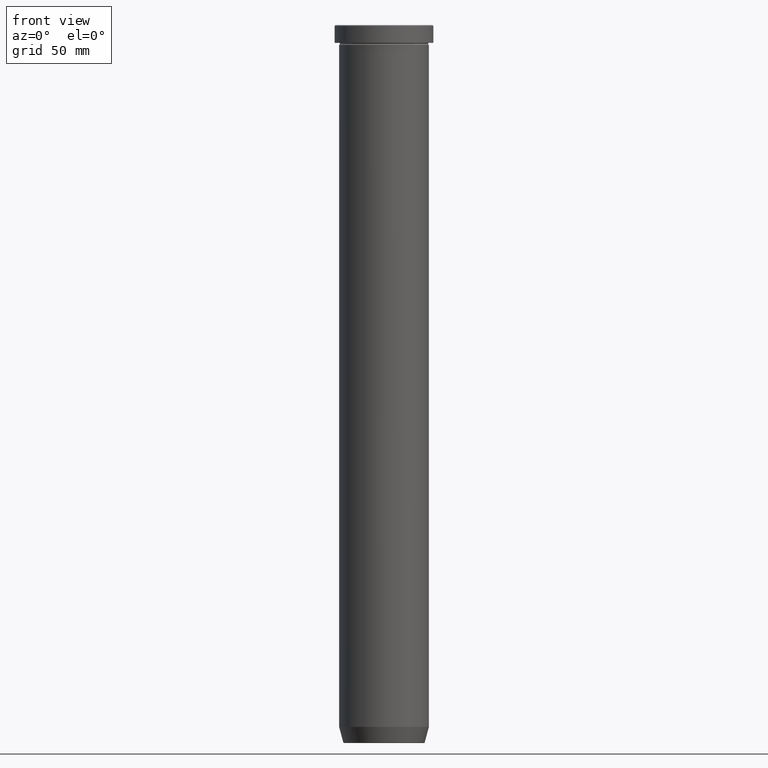
[diagram: clean part render]
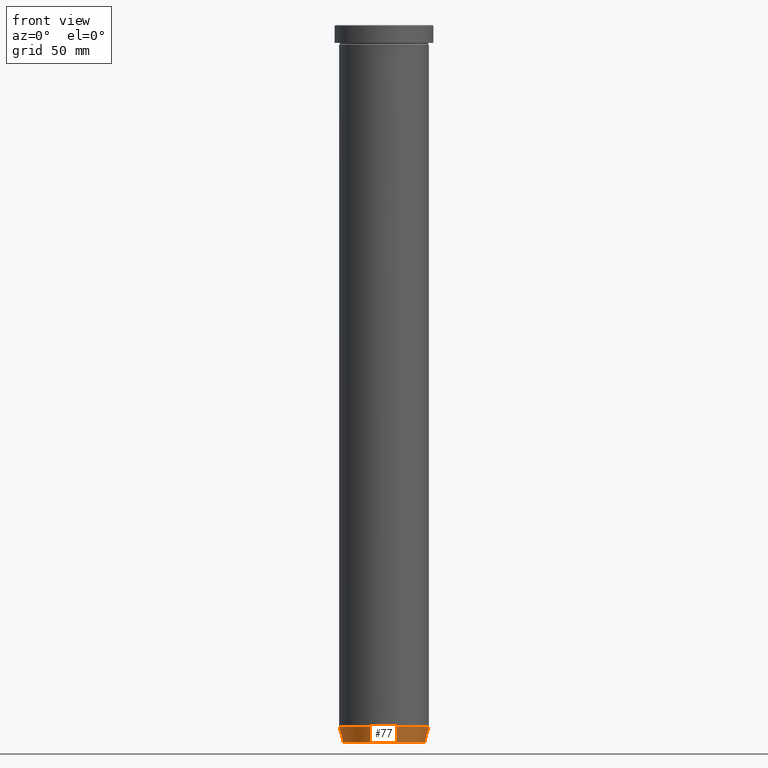
[diagram: same view with one face highlighted and labeled with its STEP entity id]
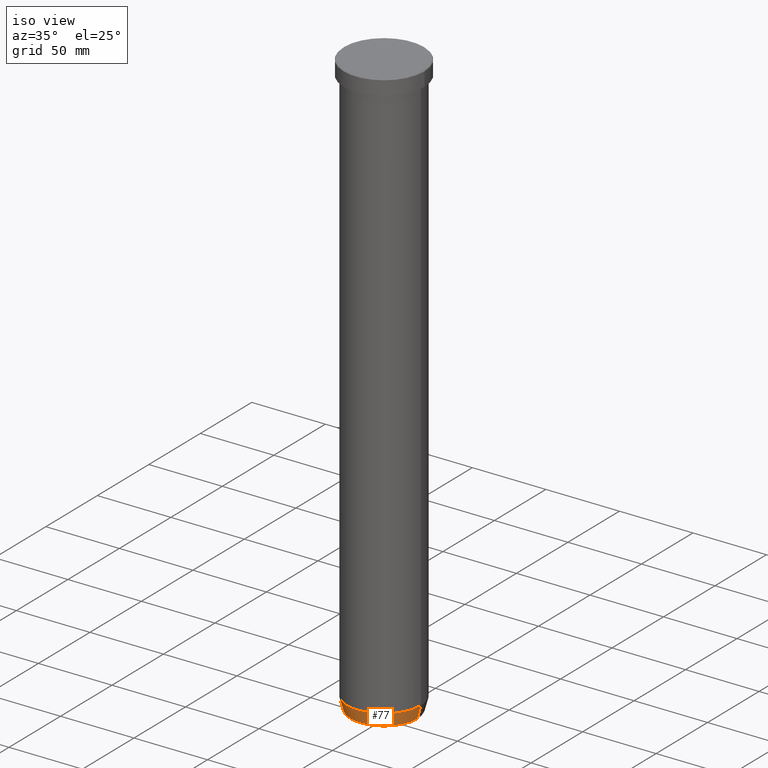
[diagram: same view with one face highlighted and labeled with its STEP entity id]
A machine part, front view. The second image highlights one B-rep face of the part: STEP entity #77.
A second angle (iso view) of the same face is appended — the face is thin or edge-on in the first view.
In plain terms, the highlighted conical surface has half-angle 15 deg.
Its self-contained STEP definition (entity closure, byte-faithful):
#19 = EDGE_CURVE ( 'NONE', #361, #101, #63, .T. ) ;
#29 = CARTESIAN_POINT ( 'NONE',  ( 22.68775668727494477, 0.000000000000000000, -399.6294095225512706 ) ) ;
#50 = LINE ( 'NONE', #385, #357 ) ;
#60 = CARTESIAN_POINT ( 'NONE',  ( -22.58845726811988897, 2.766288189107978730E-15, -400.0000000000000000 ) ) ;
#63 = CIRCLE ( 'NONE', #551, 22.68775668727494477 ) ;
#69 = DIRECTION ( 'NONE',  ( -0.000000000000000000, -0.000000000000000000, 1.000000000000000000 ) ) ;
#77 = ADVANCED_FACE ( 'NONE', ( #209 ), #355, .T. ) ;
#80 = VERTEX_POINT ( 'NONE', #535 ) ;
#85 = EDGE_LOOP ( 'NONE', ( #519, #219, #589, #558 ) ) ;
#93 = EDGE_CURVE ( 'NONE', #80, #469, #306, .T. ) ;
#101 = VERTEX_POINT ( 'NONE', #29 ) ;
#110 = CARTESIAN_POINT ( 'NONE',  ( 0.000000000000000000, 0.000000000000000000, -391.0000000000000000 ) ) ;
#148 = CARTESIAN_POINT ( 'NONE',  ( -22.68775668727494477, 2.920032929279452187E-15, -399.6294095225512706 ) ) ;
#152 = CARTESIAN_POINT ( 'NONE',  ( 0.000000000000000000, 0.000000000000000000, -400.0000000000000000 ) ) ;
#154 = AXIS2_PLACEMENT_3D ( 'NONE', #152, #69, #495 ) ;
#180 = CARTESIAN_POINT ( 'NONE',  ( 0.000000000000000000, 0.000000000000000000, -399.6294095225512706 ) ) ;
#209 = FACE_OUTER_BOUND ( 'NONE', #85, .T. ) ;
#219 = ORIENTED_EDGE ( 'NONE', *, *, #19, .T. ) ;
#243 = AXIS2_PLACEMENT_3D ( 'NONE', #110, #572, #304 ) ;
#304 = DIRECTION ( 'NONE',  ( 1.000000000000000000, 0.000000000000000000, 0.000000000000000000 ) ) ;
#306 = CIRCLE ( 'NONE', #243, 25.00000000000000000 ) ;
#333 = DIRECTION ( 'NONE',  ( 0.2588190451025211836, 0.000000000000000000, 0.9659258262890680902 ) ) ;
#355 = CONICAL_SURFACE ( 'NONE', #154, 22.58845726811988897, 0.2617993877991499074 ) ;
#357 = VECTOR ( 'NONE', #333, 1000.000000000000114 ) ;
#361 = VERTEX_POINT ( 'NONE', #148 ) ;
#385 = CARTESIAN_POINT ( 'NONE',  ( 22.58845726811988897, 0.000000000000000000, -400.0000000000000000 ) ) ;
#418 = DIRECTION ( 'NONE',  ( -0.000000000000000000, -0.000000000000000000, 1.000000000000000000 ) ) ;
#419 = EDGE_CURVE ( 'NONE', #101, #469, #50, .T. ) ;
#425 = DIRECTION ( 'NONE',  ( -0.2588190451025211836, 3.169619151431770488E-17, 0.9659258262890680902 ) ) ;
#453 = EDGE_CURVE ( 'NONE', #361, #80, #556, .T. ) ;
#469 = VERTEX_POINT ( 'NONE', #557 ) ;
#474 = VECTOR ( 'NONE', #425, 1000.000000000000114 ) ;
#495 = DIRECTION ( 'NONE',  ( 1.000000000000000000, 0.000000000000000000, 0.000000000000000000 ) ) ;
#511 = DIRECTION ( 'NONE',  ( -1.000000000000000000, 0.000000000000000000, 0.000000000000000000 ) ) ;
#519 = ORIENTED_EDGE ( 'NONE', *, *, #453, .F. ) ;
#535 = CARTESIAN_POINT ( 'NONE',  ( -25.00000000000000000, 3.061616997868383043E-15, -391.0000000000000000 ) ) ;
#551 = AXIS2_PLACEMENT_3D ( 'NONE', #180, #418, #511 ) ;
#556 = LINE ( 'NONE', #60, #474 ) ;
#557 = CARTESIAN_POINT ( 'NONE',  ( 25.00000000000000000, 0.000000000000000000, -391.0000000000000000 ) ) ;
#558 = ORIENTED_EDGE ( 'NONE', *, *, #93, .F. ) ;
#572 = DIRECTION ( 'NONE',  ( -0.000000000000000000, -0.000000000000000000, 1.000000000000000000 ) ) ;
#589 = ORIENTED_EDGE ( 'NONE', *, *, #419, .T. ) ;